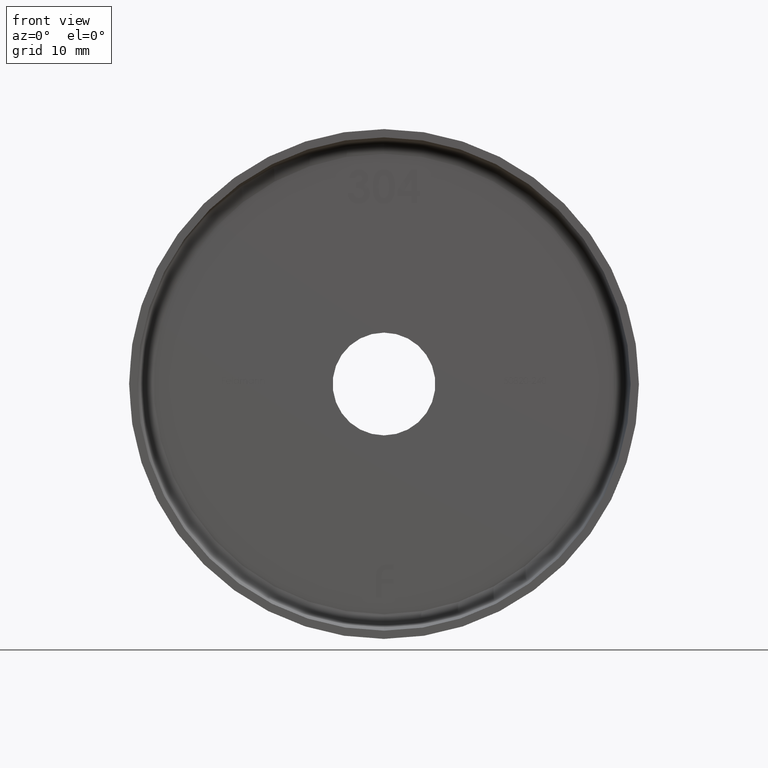
[diagram: clean part render]
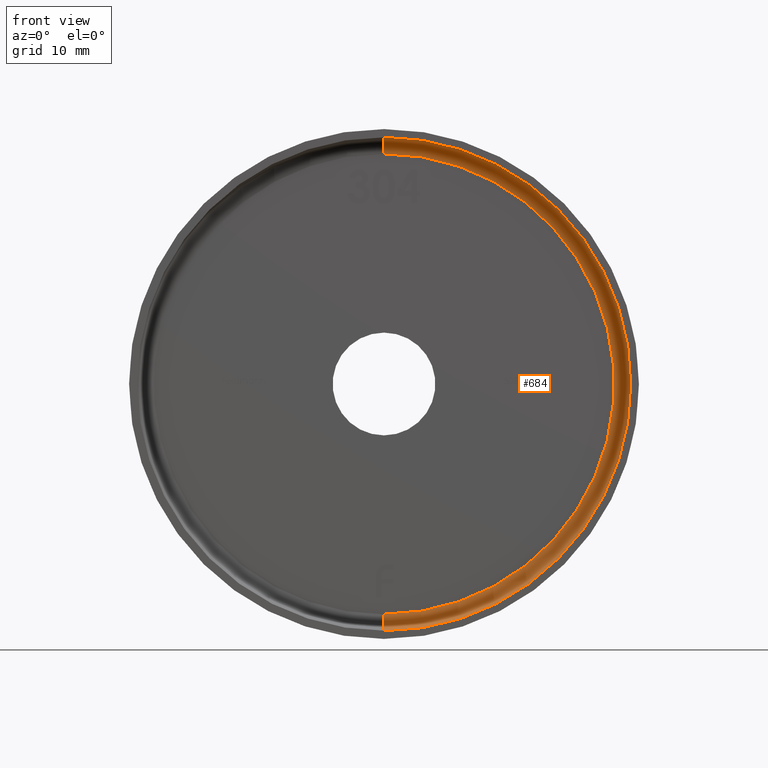
[diagram: same view with one face highlighted and labeled with its STEP entity id]
A machine part, front view. The second image highlights one B-rep face of the part: STEP entity #684.
In plain terms, the highlighted toroidal blend (fillet) surface has major radius 28 mm and minor (blend) radius 2 mm.
Its self-contained STEP definition (entity closure, byte-faithful):
#16 = ORIENTED_EDGE ( 'NONE', *, *, #2270, .F. ) ;
#684 = ADVANCED_FACE ( 'NONE', ( #13077 ), #2859, .F. ) ;
#910 = DIRECTION ( 'NONE',  ( 0.000000000000000000, 0.000000000000000000, -1.000000000000000000 ) ) ;
#2125 = CIRCLE ( 'NONE', #11332, 30.00000000000000000 ) ;
#2270 = EDGE_CURVE ( 'NONE', #7032, #4396, #15053, .T. ) ;
#2286 = CARTESIAN_POINT ( 'NONE',  ( 0.000000000000000000, 12.00000000000000000, -30.00000000000000000 ) ) ;
#2297 = AXIS2_PLACEMENT_3D ( 'NONE', #10040, #10093, #910 ) ;
#2859 = TOROIDAL_SURFACE ( 'NONE', #2297, 27.99999999999999645, 2.000000000000000000 ) ;
#2872 = DIRECTION ( 'NONE',  ( 0.000000000000000000, 0.000000000000000000, -1.000000000000000000 ) ) ;
#3278 = CIRCLE ( 'NONE', #13992, 2.000000000000001776 ) ;
#3591 = EDGE_LOOP ( 'NONE', ( #8479, #16, #9870, #11012 ) ) ;
#4037 = DIRECTION ( 'NONE',  ( 1.000000000000000000, 0.000000000000000000, -1.224646799147353207E-16 ) ) ;
#4396 = VERTEX_POINT ( 'NONE', #5768 ) ;
#5216 = AXIS2_PLACEMENT_3D ( 'NONE', #11999, #4037, #5346 ) ;
#5346 = DIRECTION ( 'NONE',  ( -1.224646799147351482E-16, 0.000000000000000000, -1.000000000000000000 ) ) ;
#5768 = CARTESIAN_POINT ( 'NONE',  ( 3.551475717527324030E-15, 14.00000000000000000, 27.99999999999999645 ) ) ;
#6356 = EDGE_CURVE ( 'NONE', #10883, #6825, #2125, .T. ) ;
#6825 = VERTEX_POINT ( 'NONE', #9738 ) ;
#7032 = VERTEX_POINT ( 'NONE', #14485 ) ;
#7430 = DIRECTION ( 'NONE',  ( -1.000000000000000000, 0.000000000000000000, 0.000000000000000000 ) ) ;
#8131 = CARTESIAN_POINT ( 'NONE',  ( 0.000000000000000000, 12.00000000000000000, 0.000000000000000000 ) ) ;
#8240 = DIRECTION ( 'NONE',  ( -0.000000000000000000, -1.000000000000000000, -0.000000000000000000 ) ) ;
#8361 = DIRECTION ( 'NONE',  ( 0.000000000000000000, 0.000000000000000000, -1.000000000000000000 ) ) ;
#8479 = ORIENTED_EDGE ( 'NONE', *, *, #14258, .F. ) ;
#9738 = CARTESIAN_POINT ( 'NONE',  ( 3.673940397442059178E-15, 12.00000000000000000, 30.00000000000000000 ) ) ;
#9870 = ORIENTED_EDGE ( 'NONE', *, *, #17010, .T. ) ;
#10040 = CARTESIAN_POINT ( 'NONE',  ( 0.000000000000000000, 12.00000000000000000, 0.000000000000000000 ) ) ;
#10093 = DIRECTION ( 'NONE',  ( -0.000000000000000000, -1.000000000000000000, -0.000000000000000000 ) ) ;
#10186 = CARTESIAN_POINT ( 'NONE',  ( 0.000000000000000000, 12.00000000000000000, -27.99999999999999645 ) ) ;
#10245 = DIRECTION ( 'NONE',  ( 0.000000000000000000, 0.000000000000000000, 1.000000000000000000 ) ) ;
#10883 = VERTEX_POINT ( 'NONE', #2286 ) ;
#10956 = DIRECTION ( 'NONE',  ( -0.000000000000000000, -1.000000000000000000, -0.000000000000000000 ) ) ;
#11012 = ORIENTED_EDGE ( 'NONE', *, *, #6356, .T. ) ;
#11332 = AXIS2_PLACEMENT_3D ( 'NONE', #8131, #8240, #8361 ) ;
#11999 = CARTESIAN_POINT ( 'NONE',  ( 3.429011037612588881E-15, 12.00000000000000000, 27.99999999999999645 ) ) ;
#13077 = FACE_OUTER_BOUND ( 'NONE', #3591, .T. ) ;
#13992 = AXIS2_PLACEMENT_3D ( 'NONE', #10186, #7430, #10245 ) ;
#14258 = EDGE_CURVE ( 'NONE', #4396, #6825, #16094, .T. ) ;
#14485 = CARTESIAN_POINT ( 'NONE',  ( 0.000000000000000000, 14.00000000000000000, -27.99999999999999645 ) ) ;
#14773 = CARTESIAN_POINT ( 'NONE',  ( 0.000000000000000000, 14.00000000000000000, 0.000000000000000000 ) ) ;
#15053 = CIRCLE ( 'NONE', #16858, 27.99999999999999645 ) ;
#16094 = CIRCLE ( 'NONE', #5216, 2.000000000000001776 ) ;
#16858 = AXIS2_PLACEMENT_3D ( 'NONE', #14773, #10956, #2872 ) ;
#17010 = EDGE_CURVE ( 'NONE', #7032, #10883, #3278, .T. ) ;